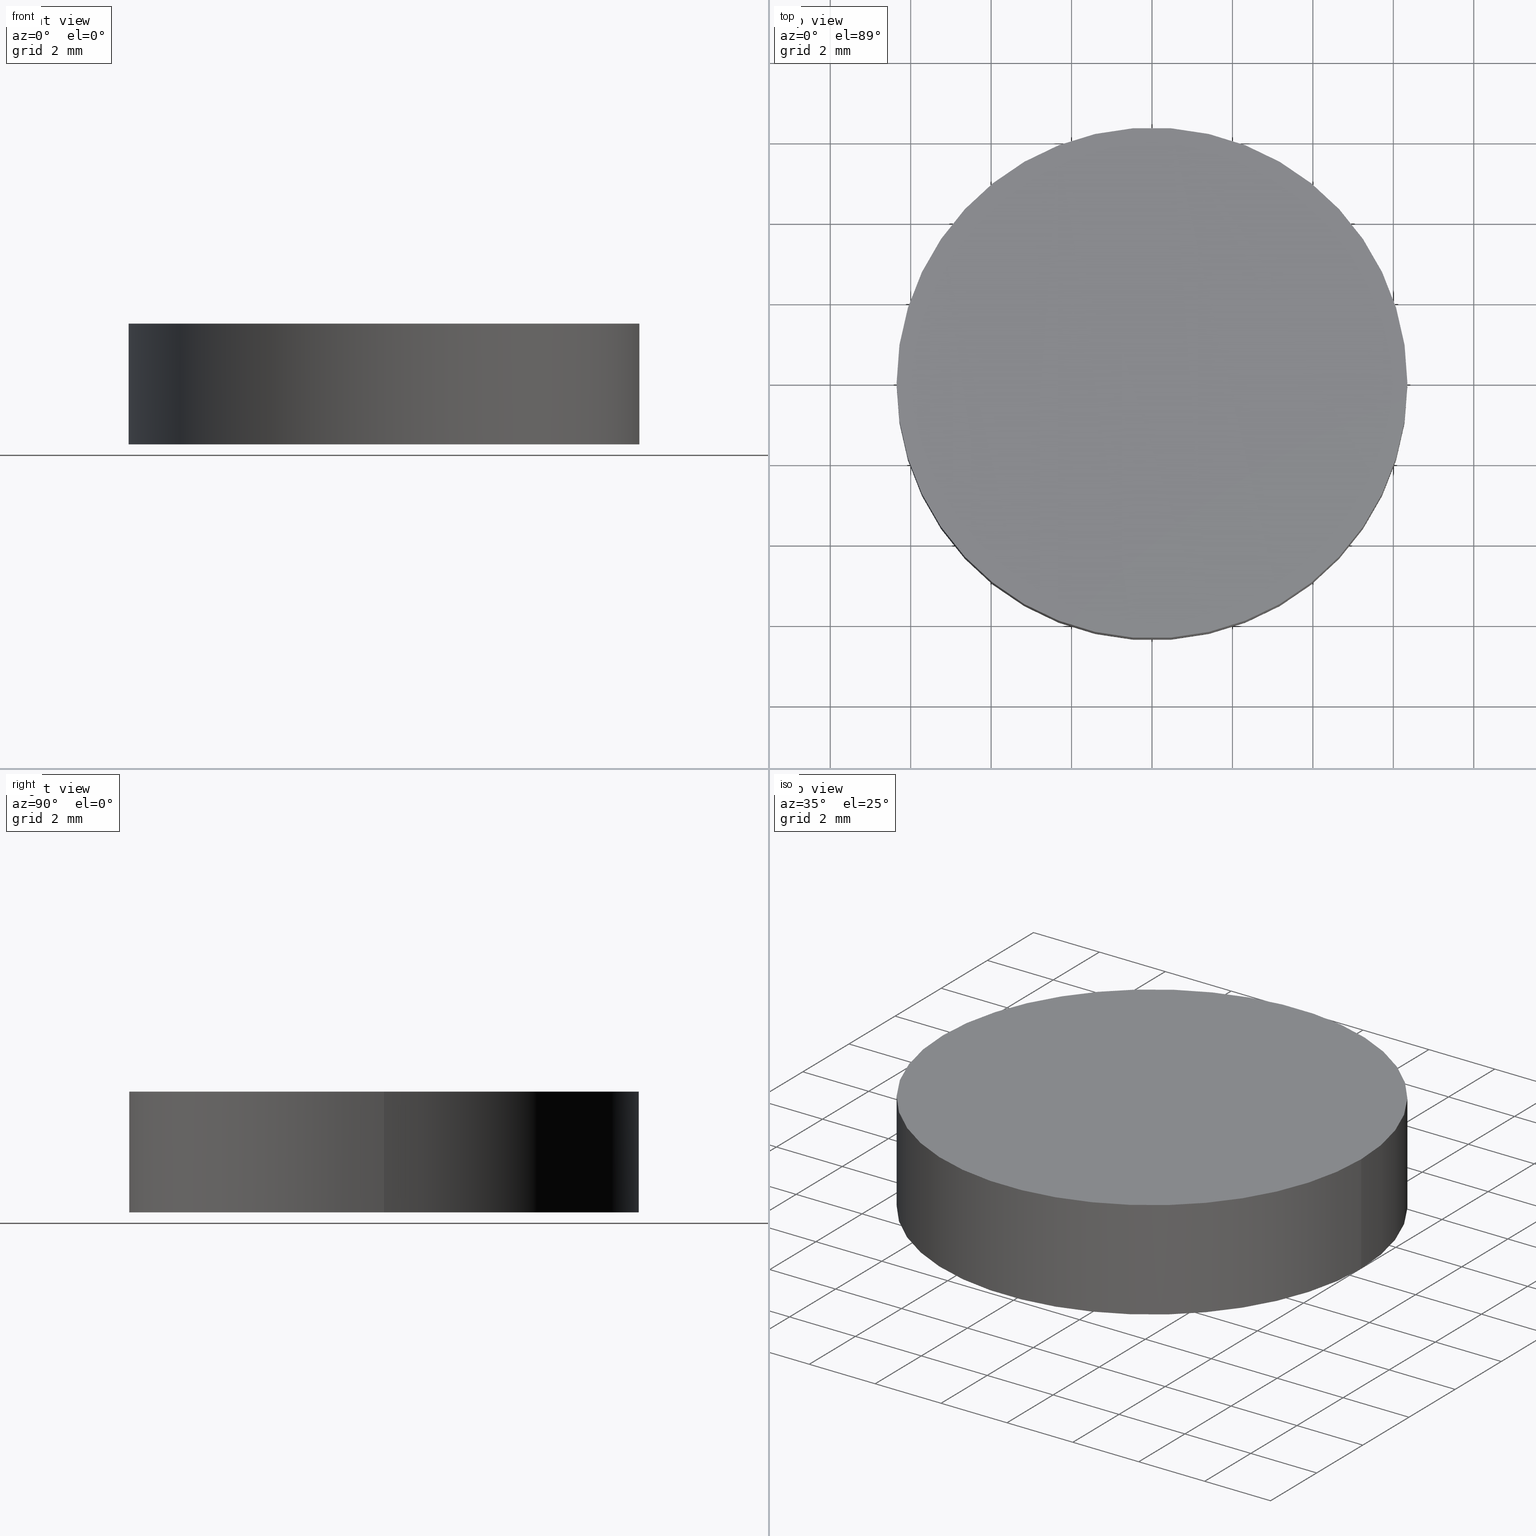
[diagram: canonical four-view strip — front | top / right | iso, engineering-drawing reading convention]
A machine part, canonical four-view strip (front | top / right | iso — engineering-drawing reading convention). The complete STEP part file that produces these views, byte-faithful:
ISO-10303-21;
HEADER;
FILE_DESCRIPTION (( 'STEP AP214' ),
    '1' );
FILE_NAME ('185003.STEP',
    '2019-07-12T01:32:48',
    ( 'user' ),
    ( '΢���й�' ),
    'SwSTEP 2.0',
    'SolidWorks 2016',
    '' );
FILE_SCHEMA (( 'AUTOMOTIVE_DESIGN' ));
ENDSEC;

DATA;
#1 = STYLED_ITEM ( 'NONE', ( #136 ), #108 ) ;
#2 = ORIENTED_EDGE ( 'NONE', *, *, #131, .F. ) ;
#3 = EDGE_CURVE ( 'NONE', #124, #110, #46, .T. ) ;
#4 = FACE_OUTER_BOUND ( 'NONE', #93, .T. ) ;
#5 =( NAMED_UNIT ( * ) PLANE_ANGLE_UNIT ( ) SI_UNIT ( $, .RADIAN. ) );
#6 = CARTESIAN_POINT ( 'NONE',  ( 0.0000000000000000000, 0.0000000000000000000, 0.0000000000000000000 ) ) ;
#7 = FILL_AREA_STYLE ('',( #89 ) ) ;
#8 = CARTESIAN_POINT ( 'NONE',  ( 6.349999999999999600, 7.776507174585692200E-016, 3.000000000000000000 ) ) ;
#9 = DIRECTION ( 'NONE',  ( -1.000000000000000000, 0.0000000000000000000, 0.0000000000000000000 ) ) ;
#10 = SHAPE_DEFINITION_REPRESENTATION ( #83, #36 ) ;
#11 = DIRECTION ( 'NONE',  ( 0.0000000000000000000, 0.0000000000000000000, 1.000000000000000000 ) ) ;
#12 = STYLED_ITEM ( 'NONE', ( #102 ), #36 ) ;
#13 = ORIENTED_EDGE ( 'NONE', *, *, #59, .F. ) ;
#14 = COLOUR_RGB ( '',1.000000000000000000, 1.000000000000000000, 1.000000000000000000 ) ;
#15 = ORIENTED_EDGE ( 'NONE', *, *, #23, .F. ) ;
#16 =( NAMED_UNIT ( * ) PLANE_ANGLE_UNIT ( ) SI_UNIT ( $, .RADIAN. ) );
#17 = CYLINDRICAL_SURFACE ( 'NONE', #76, 6.349999999999999600 ) ;
#18 = PLANE ( 'NONE',  #119 ) ;
#19 = PRODUCT_DEFINITION_CONTEXT ( 'detailed design', #125, 'design' ) ;
#20 = DIRECTION ( 'NONE',  ( -0.0000000000000000000, -0.0000000000000000000, -1.000000000000000000 ) ) ;
#21 = PRESENTATION_LAYER_ASSIGNMENT (  '', '', ( #12 ) ) ;
#22 = DIRECTION ( 'NONE',  ( 1.000000000000000000, 0.0000000000000000000, 0.0000000000000000000 ) ) ;
#23 = EDGE_CURVE ( 'NONE', #110, #124, #82, .T. ) ;
#24 = FACE_OUTER_BOUND ( 'NONE', #113, .T. ) ;
#25 = ORIENTED_EDGE ( 'NONE', *, *, #43, .T. ) ;
#26 = MECHANICAL_DESIGN_GEOMETRIC_PRESENTATION_REPRESENTATION (  '', ( #12 ), #34 ) ;
#27 = SURFACE_STYLE_USAGE ( .BOTH. , #105 ) ;
#28 = DIRECTION ( 'NONE',  ( 1.000000000000000000, 0.0000000000000000000, -0.0000000000000000000 ) ) ;
#29 = DIRECTION ( 'NONE',  ( 0.0000000000000000000, 0.0000000000000000000, 1.000000000000000000 ) ) ;
#30 = CARTESIAN_POINT ( 'NONE',  ( -6.349999999999999600, 0.0000000000000000000, 3.000000000000000000 ) ) ;
#31 = DIRECTION ( 'NONE',  ( 1.000000000000000000, 0.0000000000000000000, 0.0000000000000000000 ) ) ;
#32 = DIRECTION ( 'NONE',  ( -0.0000000000000000000, -0.0000000000000000000, -1.000000000000000000 ) ) ;
#33 = CLOSED_SHELL ( 'NONE', ( #70, #94, #134, #116 ) ) ;
#34 =( GEOMETRIC_REPRESENTATION_CONTEXT ( 3 ) GLOBAL_UNCERTAINTY_ASSIGNED_CONTEXT ( ( #60 ) ) GLOBAL_UNIT_ASSIGNED_CONTEXT ( ( #95, #16, #86 ) ) REPRESENTATION_CONTEXT ( 'NONE', 'WORKASPACE' ) );
#35 = FILL_AREA_STYLE ('',( #114 ) ) ;
#36 = ADVANCED_BREP_SHAPE_REPRESENTATION ( '185003', ( #108, #56 ), #130 ) ;
#37 = DIRECTION ( 'NONE',  ( 1.000000000000000000, 0.0000000000000000000, 0.0000000000000000000 ) ) ;
#38 = CARTESIAN_POINT ( 'NONE',  ( 0.0000000000000000000, 0.0000000000000000000, 0.0000000000000000000 ) ) ;
#39 = CARTESIAN_POINT ( 'NONE',  ( 0.0000000000000000000, 0.0000000000000000000, 3.000000000000000000 ) ) ;
#40 = DIRECTION ( 'NONE',  ( 0.0000000000000000000, 0.0000000000000000000, 1.000000000000000000 ) ) ;
#41 = CARTESIAN_POINT ( 'NONE',  ( 0.0000000000000000000, 0.0000000000000000000, 3.000000000000000000 ) ) ;
#42 = ORIENTED_EDGE ( 'NONE', *, *, #59, .T. ) ;
#43 = EDGE_CURVE ( 'NONE', #85, #71, #80, .T. ) ;
#44 = FACE_OUTER_BOUND ( 'NONE', #47, .T. ) ;
#45 = COLOUR_RGB ( '',1.000000000000000000, 1.000000000000000000, 1.000000000000000000 ) ;
#46 = CIRCLE ( 'NONE', #69, 6.349999999999999600 ) ;
#47 = EDGE_LOOP ( 'NONE', ( #112, #15, #42, #90 ) ) ;
#48 = AXIS2_PLACEMENT_3D ( 'NONE', #120, #40, #31 ) ;
#49 = APPLICATION_PROTOCOL_DEFINITION ( 'draft international standard', 'automotive_design', 1998, #125 ) ;
#50 = APPLICATION_CONTEXT ( 'automotive_design' ) ;
#51 = LINE ( 'NONE', #55, #126 ) ;
#52 = CARTESIAN_POINT ( 'NONE',  ( 0.0000000000000000000, 0.0000000000000000000, 0.0000000000000000000 ) ) ;
#53 =( NAMED_UNIT ( * ) SI_UNIT ( $, .STERADIAN. ) SOLID_ANGLE_UNIT ( ) );
#54 = DIRECTION ( 'NONE',  ( -0.0000000000000000000, -0.0000000000000000000, -1.000000000000000000 ) ) ;
#55 = CARTESIAN_POINT ( 'NONE',  ( -6.349999999999999600, 0.0000000000000000000, 3.000000000000000000 ) ) ;
#56 = AXIS2_PLACEMENT_3D ( 'NONE', #6, #73, #135 ) ;
#57 = LINE ( 'NONE', #128, #107 ) ;
#58 = EDGE_LOOP ( 'NONE', ( #2, #67 ) ) ;
#59 = EDGE_CURVE ( 'NONE', #110, #71, #51, .T. ) ;
#60 = UNCERTAINTY_MEASURE_WITH_UNIT (LENGTH_MEASURE( 1.000000000000000100E-005 ), #95, 'distance_accuracy_value', 'NONE');
#61 = PRODUCT_CONTEXT ( 'NONE', #50, 'mechanical' ) ;
#62 = FACE_OUTER_BOUND ( 'NONE', #58, .T. ) ;
#63 = APPLICATION_PROTOCOL_DEFINITION ( 'draft international standard', 'automotive_design', 1998, #50 ) ;
#64 = PRODUCT_DEFINITION ( 'δ֪', '', #72, #19 ) ;
#65 = CARTESIAN_POINT ( 'NONE',  ( 0.0000000000000000000, 0.0000000000000000000, 3.000000000000000000 ) ) ;
#66 =( LENGTH_UNIT ( ) NAMED_UNIT ( * ) SI_UNIT ( .MILLI., .METRE. ) );
#67 = ORIENTED_EDGE ( 'NONE', *, *, #43, .F. ) ;
#68 = DIRECTION ( 'NONE',  ( 1.000000000000000000, 0.0000000000000000000, 0.0000000000000000000 ) ) ;
#69 = AXIS2_PLACEMENT_3D ( 'NONE', #41, #11, #22 ) ;
#70 = ADVANCED_FACE ( 'NONE', ( #24 ), #129, .T. ) ;
#71 = VERTEX_POINT ( 'NONE', #77 ) ;
#72 = PRODUCT_DEFINITION_FORMATION_WITH_SPECIFIED_SOURCE ( '�κ�', '', #121, .NOT_KNOWN. ) ;
#73 = DIRECTION ( 'NONE',  ( 0.0000000000000000000, 0.0000000000000000000, 1.000000000000000000 ) ) ;
#74 =( NAMED_UNIT ( * ) SI_UNIT ( $, .STERADIAN. ) SOLID_ANGLE_UNIT ( ) );
#75 = SURFACE_SIDE_STYLE ('',( #132 ) ) ;
#76 = AXIS2_PLACEMENT_3D ( 'NONE', #39, #109, #117 ) ;
#77 = CARTESIAN_POINT ( 'NONE',  ( -6.349999999999999600, 0.0000000000000000000, 0.0000000000000000000 ) ) ;
#78 = CARTESIAN_POINT ( 'NONE',  ( 0.0000000000000000000, 0.0000000000000000000, 3.000000000000000000 ) ) ;
#79 = PRODUCT_RELATED_PRODUCT_CATEGORY ( 'part', '', ( #121 ) ) ;
#80 = CIRCLE ( 'NONE', #48, 6.349999999999999600 ) ;
#81 = EDGE_CURVE ( 'NONE', #124, #85, #57, .T. ) ;
#82 = CIRCLE ( 'NONE', #91, 6.349999999999999600 ) ;
#83 = PRODUCT_DEFINITION_SHAPE ( 'NONE', 'NONE',  #64 ) ;
#84 = PRESENTATION_LAYER_ASSIGNMENT (  '', '', ( #1 ) ) ;
#85 = VERTEX_POINT ( 'NONE', #138 ) ;
#86 =( NAMED_UNIT ( * ) SI_UNIT ( $, .STERADIAN. ) SOLID_ANGLE_UNIT ( ) );
#87 =( LENGTH_UNIT ( ) NAMED_UNIT ( * ) SI_UNIT ( .MILLI., .METRE. ) );
#88 = PLANE ( 'NONE',  #139 ) ;
#89 = FILL_AREA_STYLE_COLOUR ( '', #14 ) ;
#90 = ORIENTED_EDGE ( 'NONE', *, *, #131, .T. ) ;
#91 = AXIS2_PLACEMENT_3D ( 'NONE', #78, #140, #68 ) ;
#92 = MECHANICAL_DESIGN_GEOMETRIC_PRESENTATION_REPRESENTATION (  '', ( #1 ), #97 ) ;
#93 = EDGE_LOOP ( 'NONE', ( #99, #104 ) ) ;
#94 = ADVANCED_FACE ( 'NONE', ( #44 ), #17, .T. ) ;
#95 =( LENGTH_UNIT ( ) NAMED_UNIT ( * ) SI_UNIT ( .MILLI., .METRE. ) );
#96 = DIRECTION ( 'NONE',  ( 1.000000000000000000, 0.0000000000000000000, -0.0000000000000000000 ) ) ;
#97 =( GEOMETRIC_REPRESENTATION_CONTEXT ( 3 ) GLOBAL_UNCERTAINTY_ASSIGNED_CONTEXT ( ( #101 ) ) GLOBAL_UNIT_ASSIGNED_CONTEXT ( ( #66, #127, #53 ) ) REPRESENTATION_CONTEXT ( 'NONE', 'WORKASPACE' ) );
#98 = CARTESIAN_POINT ( 'NONE',  ( 0.0000000000000000000, 0.0000000000000000000, 3.000000000000000000 ) ) ;
#99 = ORIENTED_EDGE ( 'NONE', *, *, #23, .T. ) ;
#100 = AXIS2_PLACEMENT_3D ( 'NONE', #98, #20, #9 ) ;
#101 = UNCERTAINTY_MEASURE_WITH_UNIT (LENGTH_MEASURE( 1.000000000000000100E-005 ), #66, 'distance_accuracy_value', 'NONE');
#102 = PRESENTATION_STYLE_ASSIGNMENT (( #27 ) ) ;
#103 = UNCERTAINTY_MEASURE_WITH_UNIT (LENGTH_MEASURE( 1.000000000000000100E-005 ), #87, 'distance_accuracy_value', 'NONE');
#104 = ORIENTED_EDGE ( 'NONE', *, *, #3, .T. ) ;
#105 = SURFACE_SIDE_STYLE ('',( #123 ) ) ;
#106 = DIRECTION ( 'NONE',  ( 0.0000000000000000000, 0.0000000000000000000, 1.000000000000000000 ) ) ;
#107 = VECTOR ( 'NONE', #54, 1000.000000000000000 ) ;
#108 = MANIFOLD_SOLID_BREP ( '͹̨-����1', #33 ) ;
#109 = DIRECTION ( 'NONE',  ( -0.0000000000000000000, -0.0000000000000000000, -1.000000000000000000 ) ) ;
#110 = VERTEX_POINT ( 'NONE', #30 ) ;
#111 = AXIS2_PLACEMENT_3D ( 'NONE', #52, #115, #37 ) ;
#112 = ORIENTED_EDGE ( 'NONE', *, *, #81, .F. ) ;
#113 = EDGE_LOOP ( 'NONE', ( #118, #133, #25, #13 ) ) ;
#114 = FILL_AREA_STYLE_COLOUR ( '', #45 ) ;
#115 = DIRECTION ( 'NONE',  ( 0.0000000000000000000, 0.0000000000000000000, 1.000000000000000000 ) ) ;
#116 = ADVANCED_FACE ( 'NONE', ( #62 ), #18, .F. ) ;
#117 = DIRECTION ( 'NONE',  ( -1.000000000000000000, 0.0000000000000000000, 0.0000000000000000000 ) ) ;
#118 = ORIENTED_EDGE ( 'NONE', *, *, #3, .F. ) ;
#119 = AXIS2_PLACEMENT_3D ( 'NONE', #38, #29, #96 ) ;
#120 = CARTESIAN_POINT ( 'NONE',  ( 0.0000000000000000000, 0.0000000000000000000, 0.0000000000000000000 ) ) ;
#121 = PRODUCT ( '185003', '185003', '', ( #61 ) ) ;
#122 = CIRCLE ( 'NONE', #111, 6.349999999999999600 ) ;
#123 = SURFACE_STYLE_FILL_AREA ( #35 ) ;
#124 = VERTEX_POINT ( 'NONE', #8 ) ;
#125 = APPLICATION_CONTEXT ( 'automotive_design' ) ;
#126 = VECTOR ( 'NONE', #32, 1000.000000000000000 ) ;
#127 =( NAMED_UNIT ( * ) PLANE_ANGLE_UNIT ( ) SI_UNIT ( $, .RADIAN. ) );
#128 = CARTESIAN_POINT ( 'NONE',  ( 6.349999999999999600, 7.776507174585692200E-016, 3.000000000000000000 ) ) ;
#129 = CYLINDRICAL_SURFACE ( 'NONE', #100, 6.349999999999999600 ) ;
#130 =( GEOMETRIC_REPRESENTATION_CONTEXT ( 3 ) GLOBAL_UNCERTAINTY_ASSIGNED_CONTEXT ( ( #103 ) ) GLOBAL_UNIT_ASSIGNED_CONTEXT ( ( #87, #5, #74 ) ) REPRESENTATION_CONTEXT ( 'NONE', 'WORKASPACE' ) );
#131 = EDGE_CURVE ( 'NONE', #71, #85, #122, .T. ) ;
#132 = SURFACE_STYLE_FILL_AREA ( #7 ) ;
#133 = ORIENTED_EDGE ( 'NONE', *, *, #81, .T. ) ;
#134 = ADVANCED_FACE ( 'NONE', ( #4 ), #88, .T. ) ;
#135 = DIRECTION ( 'NONE',  ( 1.000000000000000000, 0.0000000000000000000, 0.0000000000000000000 ) ) ;
#136 = PRESENTATION_STYLE_ASSIGNMENT (( #137 ) ) ;
#137 = SURFACE_STYLE_USAGE ( .BOTH. , #75 ) ;
#138 = CARTESIAN_POINT ( 'NONE',  ( 6.349999999999999600, 7.776507174585692200E-016, 0.0000000000000000000 ) ) ;
#139 = AXIS2_PLACEMENT_3D ( 'NONE', #65, #106, #28 ) ;
#140 = DIRECTION ( 'NONE',  ( 0.0000000000000000000, 0.0000000000000000000, 1.000000000000000000 ) ) ;
ENDSEC;
END-ISO-10303-21;
